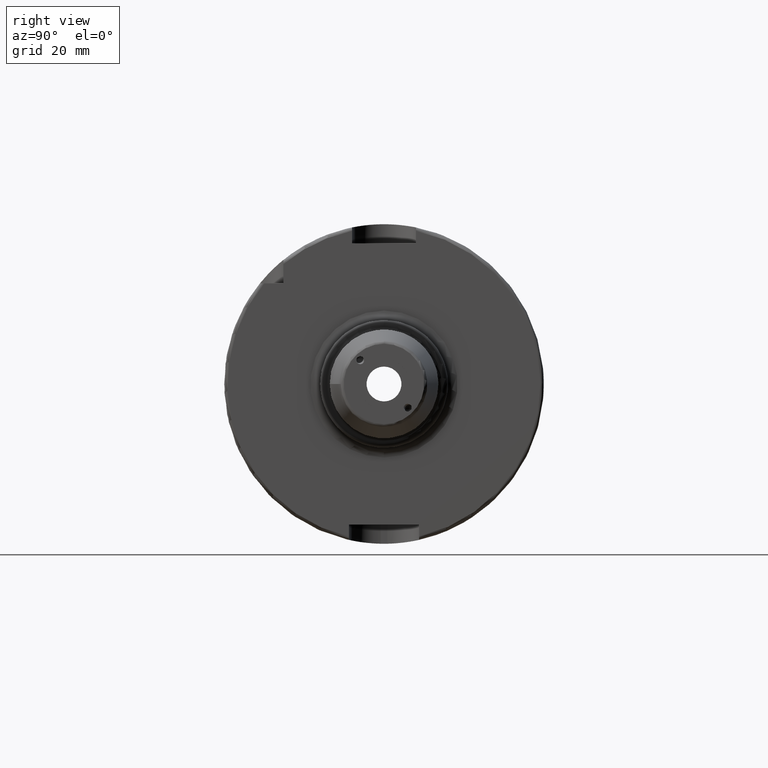
[diagram: clean part render]
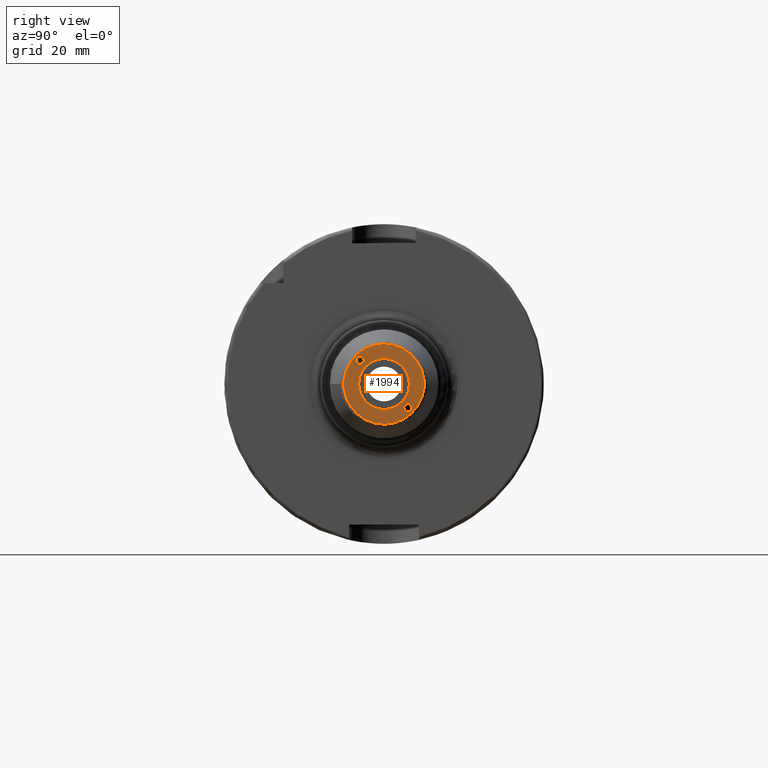
[diagram: same view with one face highlighted and labeled with its STEP entity id]
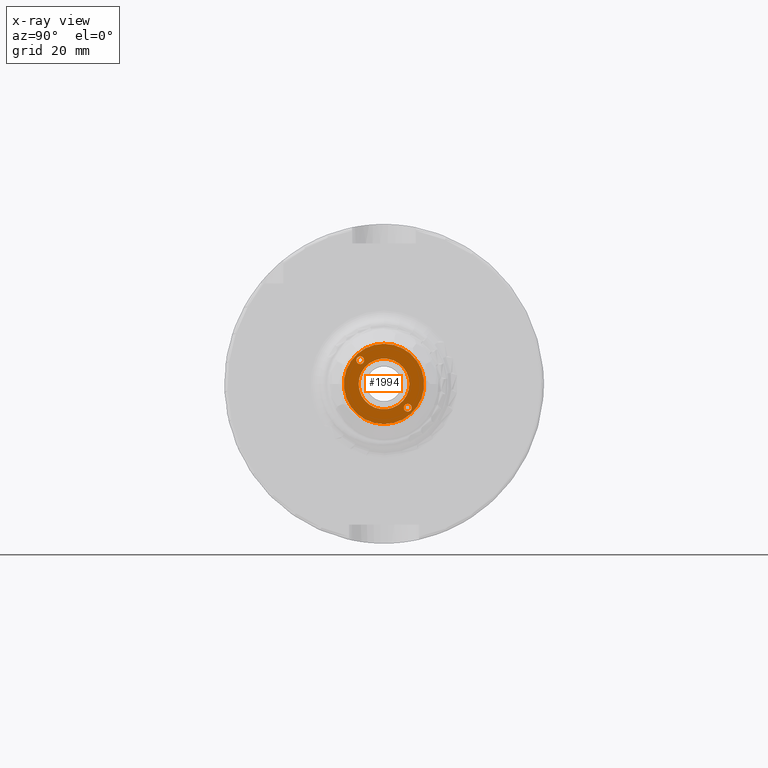
[diagram: x-ray of the same camera — body ghosted, the highlighted face saturated]
A machine part, right view. The second image highlights one B-rep face of the part: STEP entity #1994.
The next image is the same camera in x-ray: the body ghosted, the highlighted face saturated — about 0% of this face is hidden behind the body in this view.
In plain terms, the highlighted planar face has unit normal (1, 0, 0).
Its self-contained STEP definition (entity closure, byte-faithful):
#85=FACE_BOUND('',#339,.T.);
#86=FACE_BOUND('',#340,.T.);
#87=FACE_BOUND('',#341,.T.);
#98=PLANE('',#2150);
#163=ELLIPSE('',#2132,1.22968728732998,1.2295);
#164=ELLIPSE('',#2136,1.22968728732998,1.2295);
#218=FACE_OUTER_BOUND('',#338,.T.);
#338=EDGE_LOOP('',(#1368));
#339=EDGE_LOOP('',(#1369));
#340=EDGE_LOOP('',(#1370));
#341=EDGE_LOOP('',(#1371));
#682=CIRCLE('',#2145,12.5756095083418);
#686=CIRCLE('',#2151,7.93749999999999);
#811=VERTEX_POINT('',#3030);
#814=VERTEX_POINT('',#3039);
#819=VERTEX_POINT('',#3055);
#822=VERTEX_POINT('',#3065);
#1018=EDGE_CURVE('',#811,#811,#163,.T.);
#1022=EDGE_CURVE('',#814,#814,#164,.T.);
#1030=EDGE_CURVE('',#819,#819,#682,.T.);
#1035=EDGE_CURVE('',#822,#822,#686,.T.);
#1368=ORIENTED_EDGE('',*,*,#1030,.F.);
#1369=ORIENTED_EDGE('',*,*,#1018,.T.);
#1370=ORIENTED_EDGE('',*,*,#1022,.T.);
#1371=ORIENTED_EDGE('',*,*,#1035,.F.);
#1994=ADVANCED_FACE('',(#218,#85,#86,#87),#98,.T.);
#2132=AXIS2_PLACEMENT_3D('',#3031,#2400,#2401);
#2136=AXIS2_PLACEMENT_3D('',#3040,#2410,#2411);
#2145=AXIS2_PLACEMENT_3D('',#3056,#2430,#2431);
#2150=AXIS2_PLACEMENT_3D('',#3064,#2441,#2442);
#2151=AXIS2_PLACEMENT_3D('',#3066,#2443,#2444);
#2400=DIRECTION('center_axis',(-1.,0.,0.));
#2401=DIRECTION('ref_axis',(0.,-0.707106781186123,0.707106781186972));
#2410=DIRECTION('center_axis',(-1.,0.,0.));
#2411=DIRECTION('ref_axis',(0.,0.707106781186123,-0.707106781186972));
#2430=DIRECTION('center_axis',(-1.,0.,0.));
#2431=DIRECTION('ref_axis',(0.,-1.,1.83697019872103E-16));
#2441=DIRECTION('center_axis',(1.,0.,0.));
#2442=DIRECTION('ref_axis',(0.,0.,-1.));
#2443=DIRECTION('center_axis',(1.,0.,0.));
#2444=DIRECTION('ref_axis',(0.,0.,-1.));
#3030=CARTESIAN_POINT('',(130.,-6.19502755522789,7.42443391512931));
#3031=CARTESIAN_POINT('Origin',(130.,-7.42462120245875,7.42462120245875));
#3039=CARTESIAN_POINT('',(130.,6.19502755522789,-7.4244339151293));
#3040=CARTESIAN_POINT('Origin',(130.,7.42462120245875,-7.42462120245875));
#3055=CARTESIAN_POINT('',(130.,-1.54006799317178E-15,12.5756095083418));
#3056=CARTESIAN_POINT('Origin',(130.,0.,0.));
#3064=CARTESIAN_POINT('Origin',(130.,7.93749999999999,0.));
#3065=CARTESIAN_POINT('',(130.,-7.93749999999999,-9.7206339682321E-16));
#3066=CARTESIAN_POINT('Origin',(130.,0.,0.));